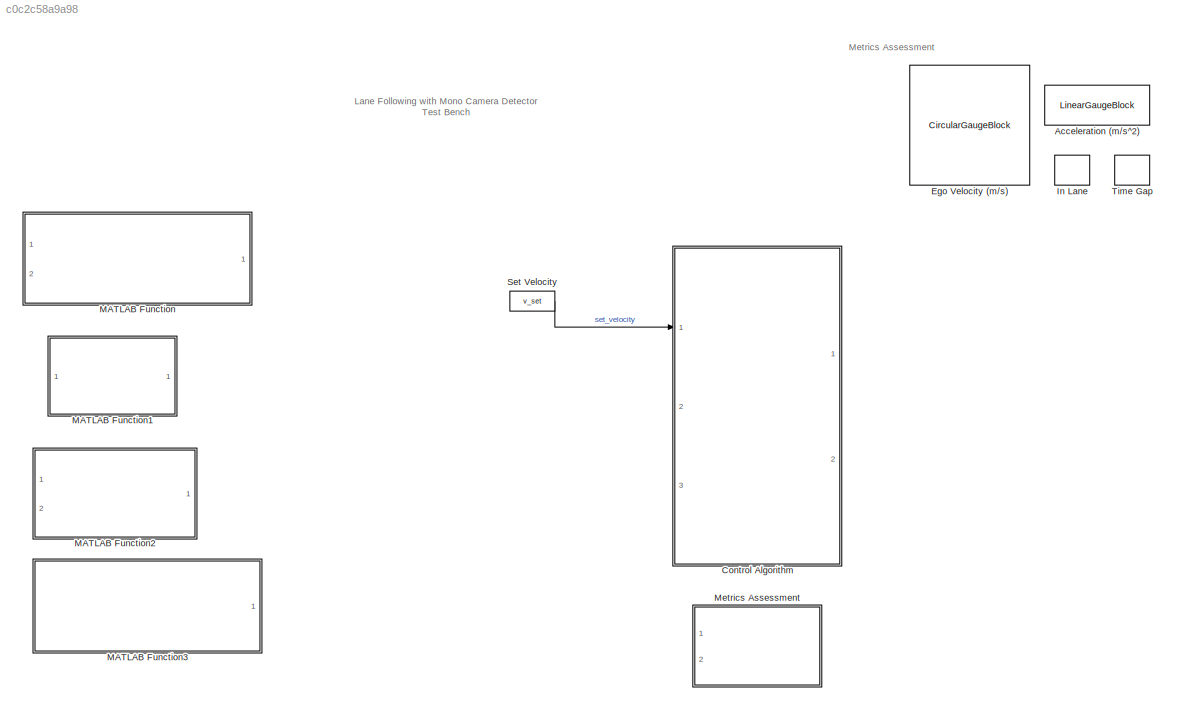
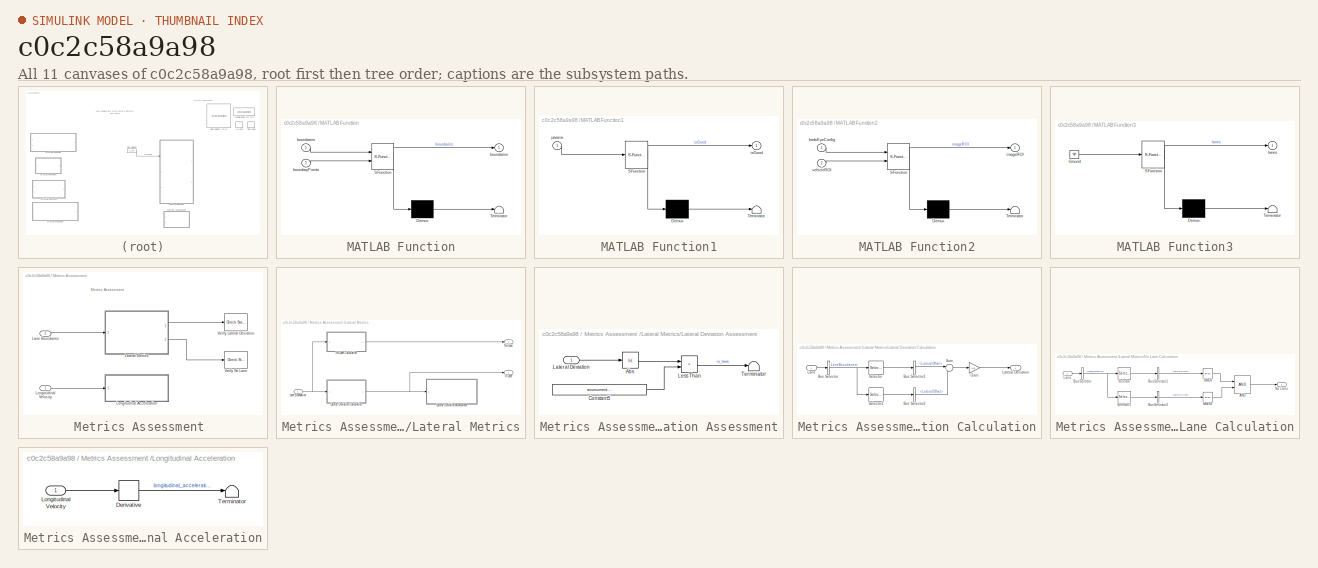
[diagram: thumbnail index - all 11 canvases of the model, root first then tree order]
MODEL slx_c0c2c58a9a98
KIND model
CONFIG AbsTol = auto
CONFIG EnableMultiTasking = off
CONFIG FixedStep = auto
CONFIG MaxStep = auto
CONFIG MinStep = auto
CONFIG PostLoadFcn = laneFollowingWithMonoCameraSetup
CONFIG RelTol = 1e-3
CONFIG SampleTimeConstraint = Unconstrained
CONFIG Solver = VariableStepAuto
CONFIG SolverName = VariableStepAuto
CONFIG StartTime = 0.0
CONFIG StopTime = scenario.StopTime
BLOCK [LinearGaugeBlock] Acceleration (m//s^2)
  LabelPosition = Hide
  ScaleMax = 6
  ScaleMin = -6
BLOCK [ModelReference] Control Algorithm
  CodeInterface = Top model
  ModelNameDialog = LFMonoCameraRefMdl.slx
  ModelReferenceVersion = 1.758
  Ports = [3, 2]
BLOCK [CircularGaugeBlock] Ego Velocity (m//s)
  LabelPosition = Hide
  ScaleMax = 50
BLOCK [LampBlock] In Lane
  LabelPosition = Hide
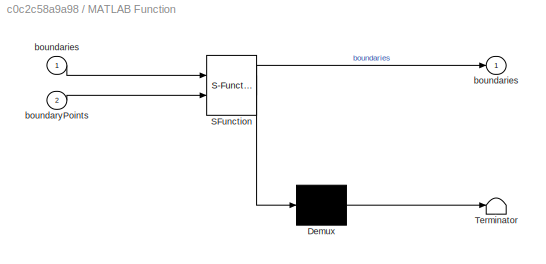
BLOCK [SubSystem] MATLAB Function
  ErrorFcn = Stateflow.Translate.translate
  PermitHierarchicalResolution = ExplicitOnly
  Ports = [2, 1]
  RequestExecContextInheritance = off
  SFBlockType = MATLAB Function
  TreatAsAtomicUnit = on
BLOCK [Demux] MATLAB Function/ Demux 
  Outputs = 1
  Ports = [1, 1]
BLOCK [S-Function] MATLAB Function/ SFunction 
  EnableBusSupport = off
  FunctionName = sf_sfun
  PortCounts = [2 2]
  Ports = [2, 2]
  SFcnIsStateOwnerBlock = off
  SFunctionDeploymentMode = off
  Tag = Stateflow S-Function 2
BLOCK [Terminator] MATLAB Function/ Terminator 
BLOCK [Outport] MATLAB Function/boundaries
  IconDisplay = Port number
BLOCK [Inport] MATLAB Function/boundaries 
  IconDisplay = Port number
BLOCK [Inport] MATLAB Function/boundaryPoints
  IconDisplay = Port number
  Port = 2
BLOCK [SubSystem] MATLAB Function1
  ErrorFcn = Stateflow.Translate.translate
  PermitHierarchicalResolution = ExplicitOnly
  Ports = [1, 1]
  RequestExecContextInheritance = off
  SFBlockType = MATLAB Function
  TreatAsAtomicUnit = on
BLOCK [Demux] MATLAB Function1/ Demux 
  Outputs = 1
  Ports = [1, 1]
BLOCK [S-Function] MATLAB Function1/ SFunction 
  EnableBusSupport = off
  FunctionName = sf_sfun
  PortCounts = [1 2]
  Ports = [1, 2]
  SFcnIsStateOwnerBlock = off
  SFunctionDeploymentMode = off
  Tag = Stateflow S-Function 1
BLOCK [Terminator] MATLAB Function1/ Terminator 
BLOCK [Outport] MATLAB Function1/isGood
  IconDisplay = Port number
BLOCK [Inport] MATLAB Function1/params
  IconDisplay = Port number
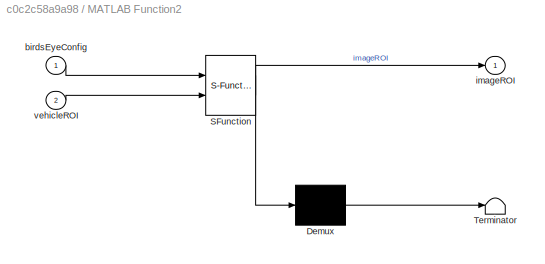
BLOCK [SubSystem] MATLAB Function2
  ErrorFcn = Stateflow.Translate.translate
  PermitHierarchicalResolution = ExplicitOnly
  Ports = [2, 1]
  RequestExecContextInheritance = off
  SFBlockType = MATLAB Function
  TreatAsAtomicUnit = on
BLOCK [Demux] MATLAB Function2/ Demux 
  Outputs = 1
  Ports = [1, 1]
BLOCK [S-Function] MATLAB Function2/ SFunction 
  EnableBusSupport = off
  FunctionName = sf_sfun
  PortCounts = [2 2]
  Ports = [2, 2]
  SFcnIsStateOwnerBlock = off
  SFunctionDeploymentMode = off
  Tag = Stateflow S-Function 3
BLOCK [Terminator] MATLAB Function2/ Terminator 
BLOCK [Inport] MATLAB Function2/birdsEyeConfig
  IconDisplay = Port number
BLOCK [Outport] MATLAB Function2/imageROI
  IconDisplay = Port number
BLOCK [Inport] MATLAB Function2/vehicleROI
  IconDisplay = Port number
  Port = 2
BLOCK [SubSystem] MATLAB Function3
  ErrorFcn = Stateflow.Translate.translate
  PermitHierarchicalResolution = ExplicitOnly
  Ports = [0, 1]
  RequestExecContextInheritance = off
  SFBlockType = MATLAB Function
  TreatAsAtomicUnit = on
BLOCK [Demux] MATLAB Function3/ Demux 
  Outputs = 1
  Ports = [1, 1]
BLOCK [Ground] MATLAB Function3/ Ground 
BLOCK [S-Function] MATLAB Function3/ SFunction 
  EnableBusSupport = off
  FunctionName = sf_sfun
  PortCounts = [1 2]
  Ports = [1, 2]
  SFcnIsStateOwnerBlock = off
  SFunctionDeploymentMode = off
  Tag = Stateflow S-Function 4
BLOCK [Terminator] MATLAB Function3/ Terminator 
BLOCK [Outport] MATLAB Function3/lanes
  IconDisplay = Port number
BLOCK [SubSystem] Metrics Assessment 
  Ports = [2]
  RequestExecContextInheritance = off
BLOCK [Inport] Metrics Assessment /Lane Boundaries
  IconDisplay = Port number
  Port = 2
BLOCK [SubSystem] Metrics Assessment /Lateral Metrics
  Ports = [1, 2]
  RequestExecContextInheritance = off
BLOCK [Outport] Metrics Assessment /Lateral Metrics/In Lane
  IconDisplay = Port number
  VectorParamsAs1DForOutWhenUnconnected = off
BLOCK [Inport] Metrics Assessment /Lateral Metrics/Lane Boundaries
  IconDisplay = Port number
BLOCK [SubSystem] Metrics Assessment /Lateral Metrics/Lateral Deviation Assessment
  Ports = [1]
  RequestExecContextInheritance = off
BLOCK [Abs] Metrics Assessment /Lateral Metrics/Lateral Deviation Assessment/Abs
  SaturateOnIntegerOverflow = off
BLOCK [Constant] Metrics Assessment /Lateral Metrics/Lateral Deviation Assessment/Constant5
  Value = assessment.LateralDeviationMax
BLOCK [Inport] Metrics Assessment /Lateral Metrics/Lateral Deviation Assessment/Lateral Deviation
  IconDisplay = Port number
BLOCK [RelationalOperator] Metrics Assessment /Lateral Metrics/Lateral Deviation Assessment/Less Than
  InputSameDT = off
  Operator = <
  OutDataTypeStr = boolean
  Ports = [2, 1]
  RndMeth = Simplest
BLOCK [Terminator] Metrics Assessment /Lateral Metrics/Lateral Deviation Assessment/Terminator
BLOCK [SubSystem] Metrics Assessment /Lateral Metrics/Lateral Deviation Calculation
  Ports = [1, 1]
  RequestExecContextInheritance = off
BLOCK [BusSelector] Metrics Assessment /Lateral Metrics/Lateral Deviation Calculation/Bus Selector
  OutputAsBus = off
  OutputSignals = LaneBoundaries
  Ports = [1, 1]
BLOCK [BusSelector] Metrics Assessment /Lateral Metrics/Lateral Deviation Calculation/Bus Selector1
  OutputAsBus = off
  OutputSignals = LateralOffset
  Ports = [1, 1]
BLOCK [BusSelector] Metrics Assessment /Lateral Metrics/Lateral Deviation Calculation/Bus Selector2
  OutputAsBus = off
  OutputSignals = LateralOffset
  Ports = [1, 1]
BLOCK [Gain] Metrics Assessment /Lateral Metrics/Lateral Deviation Calculation/Gain
  Gain = -0.5
  OutDataTypeStr = Inherit: Inherit via internal rule
  ParamDataTypeStr = Inherit: Inherit via internal rule
  SaturateOnIntegerOverflow = off
BLOCK [Inport] Metrics Assessment /Lateral Metrics/Lateral Deviation Calculation/Lane
  IconDisplay = Port number
BLOCK [Outport] Metrics Assessment /Lateral Metrics/Lateral Deviation Calculation/Lateral Deviation
  IconDisplay = Port number
BLOCK [Selector] Metrics Assessment /Lateral Metrics/Lateral Deviation Calculation/Selector
  IndexOptions = Index vector (dialog)
  Indices = 1
  InputPortWidth = 2
  OutputSizes = 1
  Ports = [1, 1]
BLOCK [Selector] Metrics Assessment /Lateral Metrics/Lateral Deviation Calculation/Selector1
  IndexOptions = Index vector (dialog)
  Indices = 2
  InputPortWidth = 2
  OutputSizes = 1
  Ports = [1, 1]
BLOCK [Sum] Metrics Assessment /Lateral Metrics/Lateral Deviation Calculation/Sum
  IconShape = round
  InputSameDT = off
  Inputs = |++
  OutDataTypeStr = Inherit: Inherit via internal rule
  Ports = [2, 1]
  SaturateOnIntegerOverflow = off
BLOCK [Outport] Metrics Assessment /Lateral Metrics/No Lane
  IconDisplay = Port number
  Port = 2
BLOCK [SubSystem] Metrics Assessment /Lateral Metrics/No Lane Calculation
  Ports = [1, 1]
  RequestExecContextInheritance = off
BLOCK [Logic] Metrics Assessment /Lateral Metrics/No Lane Calculation/AND
  AllPortsSameDT = off
  IconShape = distinctive
  OutDataTypeStr = boolean
  Ports = [2, 1]
BLOCK [BusSelector] Metrics Assessment /Lateral Metrics/No Lane Calculation/Bus Selector
  OutputAsBus = off
  OutputSignals = LaneBoundaries
  Ports = [1, 1]
BLOCK [BusSelector] Metrics Assessment /Lateral Metrics/No Lane Calculation/Bus Selector1
  OutputAsBus = off
  OutputSignals = LateralOffset
  Ports = [1, 1]
BLOCK [BusSelector] Metrics Assessment /Lateral Metrics/No Lane Calculation/Bus Selector2
  OutputAsBus = off
  OutputSignals = LateralOffset
  Ports = [1, 1]
BLOCK [RelationalOperator] Metrics Assessment /Lateral Metrics/No Lane Calculation/IsNaN
  InputSameDT = off
  Operator = isNaN
  OutDataTypeStr = boolean
  Ports = [1, 1]
  RndMeth = Simplest
BLOCK [RelationalOperator] Metrics Assessment /Lateral Metrics/No Lane Calculation/IsNaN1
  InputSameDT = off
  Operator = isNaN
  OutDataTypeStr = boolean
  Ports = [1, 1]
  RndMeth = Simplest
BLOCK [Inport] Metrics Assessment /Lateral Metrics/No Lane Calculation/Lane
  IconDisplay = Port number
BLOCK [Outport] Metrics Assessment /Lateral Metrics/No Lane Calculation/No Lane
  IconDisplay = Port number
BLOCK [Selector] Metrics Assessment /Lateral Metrics/No Lane Calculation/Selector
  IndexOptions = Index vector (dialog)
  Indices = 1
  InputPortWidth = 2
  OutputSizes = 1
  Ports = [1, 1]
BLOCK [Selector] Metrics Assessment /Lateral Metrics/No Lane Calculation/Selector1
  IndexOptions = Index vector (dialog)
  Indices = 2
  InputPortWidth = 2
  OutputSizes = 1
  Ports = [1, 1]
BLOCK [SubSystem] Metrics Assessment /Longitudinal Acceleration
  Ports = [1]
  RequestExecContextInheritance = off
BLOCK [Derivative] Metrics Assessment /Longitudinal Acceleration/Derivative
BLOCK [Inport] Metrics Assessment /Longitudinal Acceleration/Longitudinal Velocity
  IconDisplay = Port number
BLOCK [Terminator] Metrics Assessment /Longitudinal Acceleration/Terminator
BLOCK [Inport] Metrics Assessment /Longitudinal Velocity
  IconDisplay = Port number
BLOCK [Reference] Metrics Assessment /Verify Lateral Deviation  REF=simulink/Model
Verification/Check Static 
Upper Bound
  AttributesFormatString = ---------------------------------------\nmax = %<max>
  Description = u <= assessment.LateralDeviationMax
  Ports = [1]
  SourceBlock = simulink/Model\nVerification/Check Static \nUpper Bound
  SourceProductBaseCode = SL
  SourceProductName = Simulink
  SourceType = Checks_SMax
BLOCK [Reference] Metrics Assessment /Verify No Lane  REF=simulink/Model
Verification/Check 
Static Range
  Description = 0 <= u <= 0
  Ports = [1]
  SourceBlock = simulink/Model\nVerification/Check \nStatic Range
  SourceProductBaseCode = SL
  SourceProductName = Simulink
  SourceType = Checks_SRange
BLOCK [Constant] Set Velocity
  SampleTime = Ts
  Value = v_set
BLOCK [LampBlock] Time Gap
  LabelPosition = Hide
ANNOTATION (root): Lane Following with Mono Camera Detector Test Bench
ANNOTATION (root): Metrics Assessment
ANNOTATION Metrics Assessment : Metrics Assessment
LINE Metrics Assessment /Lane Boundaries:1 -> Metrics Assessment /Lateral Metrics:1
NET Metrics Assessment /Lateral Metrics/Lane Boundaries:1 -> Metrics Assessment /Lateral Metrics/Lateral Deviation Calculation:1, Metrics Assessment /Lateral Metrics/No Lane Calculation:1
LINE Metrics Assessment /Lateral Metrics/Lateral Deviation Assessment/Abs:1 -> Metrics Assessment /Lateral Metrics/Lateral Deviation Assessment/Less Than:1
LINE Metrics Assessment /Lateral Metrics/Lateral Deviation Assessment/Constant5:1 -> Metrics Assessment /Lateral Metrics/Lateral Deviation Assessment/Less Than:2
LINE Metrics Assessment /Lateral Metrics/Lateral Deviation Assessment/Lateral Deviation:1 -> Metrics Assessment /Lateral Metrics/Lateral Deviation Assessment/Abs:1
LINE Metrics Assessment /Lateral Metrics/Lateral Deviation Assessment/Less Than:1 -> Metrics Assessment /Lateral Metrics/Lateral Deviation Assessment/Terminator:1
LINE Metrics Assessment /Lateral Metrics/Lateral Deviation Calculation/Bus Selector1:1 -> Metrics Assessment /Lateral Metrics/Lateral Deviation Calculation/Sum:1
LINE Metrics Assessment /Lateral Metrics/Lateral Deviation Calculation/Bus Selector2:1 -> Metrics Assessment /Lateral Metrics/Lateral Deviation Calculation/Sum:2
NET Metrics Assessment /Lateral Metrics/Lateral Deviation Calculation/Bus Selector:1 -> Metrics Assessment /Lateral Metrics/Lateral Deviation Calculation/Selector1:1, Metrics Assessment /Lateral Metrics/Lateral Deviation Calculation/Selector:1
LINE Metrics Assessment /Lateral Metrics/Lateral Deviation Calculation/Gain:1 -> Metrics Assessment /Lateral Metrics/Lateral Deviation Calculation/Lateral Deviation:1
LINE Metrics Assessment /Lateral Metrics/Lateral Deviation Calculation/Lane:1 -> Metrics Assessment /Lateral Metrics/Lateral Deviation Calculation/Bus Selector:1
LINE Metrics Assessment /Lateral Metrics/Lateral Deviation Calculation/Selector1:1 -> Metrics Assessment /Lateral Metrics/Lateral Deviation Calculation/Bus Selector2:1
LINE Metrics Assessment /Lateral Metrics/Lateral Deviation Calculation/Selector:1 -> Metrics Assessment /Lateral Metrics/Lateral Deviation Calculation/Bus Selector1:1
LINE Metrics Assessment /Lateral Metrics/Lateral Deviation Calculation/Sum:1 -> Metrics Assessment /Lateral Metrics/Lateral Deviation Calculation/Gain:1
NET Metrics Assessment /Lateral Metrics/Lateral Deviation Calculation:1 -> Metrics Assessment /Lateral Metrics/In Lane:1, Metrics Assessment /Lateral Metrics/Lateral Deviation Assessment:1
LINE Metrics Assessment /Lateral Metrics/No Lane Calculation/AND:1 -> Metrics Assessment /Lateral Metrics/No Lane Calculation/No Lane:1
LINE Metrics Assessment /Lateral Metrics/No Lane Calculation/Bus Selector1:1 -> Metrics Assessment /Lateral Metrics/No Lane Calculation/IsNaN:1
LINE Metrics Assessment /Lateral Metrics/No Lane Calculation/Bus Selector2:1 -> Metrics Assessment /Lateral Metrics/No Lane Calculation/IsNaN1:1
NET Metrics Assessment /Lateral Metrics/No Lane Calculation/Bus Selector:1 -> Metrics Assessment /Lateral Metrics/No Lane Calculation/Selector1:1, Metrics Assessment /Lateral Metrics/No Lane Calculation/Selector:1
LINE Metrics Assessment /Lateral Metrics/No Lane Calculation/IsNaN1:1 -> Metrics Assessment /Lateral Metrics/No Lane Calculation/AND:2
LINE Metrics Assessment /Lateral Metrics/No Lane Calculation/IsNaN:1 -> Metrics Assessment /Lateral Metrics/No Lane Calculation/AND:1
LINE Metrics Assessment /Lateral Metrics/No Lane Calculation/Lane:1 -> Metrics Assessment /Lateral Metrics/No Lane Calculation/Bus Selector:1
LINE Metrics Assessment /Lateral Metrics/No Lane Calculation/Selector1:1 -> Metrics Assessment /Lateral Metrics/No Lane Calculation/Bus Selector2:1
LINE Metrics Assessment /Lateral Metrics/No Lane Calculation/Selector:1 -> Metrics Assessment /Lateral Metrics/No Lane Calculation/Bus Selector1:1
LINE Metrics Assessment /Lateral Metrics/No Lane Calculation:1 -> Metrics Assessment /Lateral Metrics/No Lane:1
LINE Metrics Assessment /Lateral Metrics:1 -> Metrics Assessment /Verify Lateral Deviation:1
LINE Metrics Assessment /Lateral Metrics:2 -> Metrics Assessment /Verify No Lane:1
LINE Metrics Assessment /Longitudinal Acceleration/Derivative:1 -> Metrics Assessment /Longitudinal Acceleration/Terminator:1
LINE Metrics Assessment /Longitudinal Acceleration/Longitudinal Velocity:1 -> Metrics Assessment /Longitudinal Acceleration/Derivative:1
LINE Metrics Assessment /Longitudinal Velocity:1 -> Metrics Assessment /Longitudinal Acceleration:1
LINE Set Velocity:1 -> Control Algorithm:1
note: NET lines group one-source signal fan-out (src -> all destinations, sorted); 1:1 wires keep LINE
CHART MATLAB Function1 states=1 transitions=1
  STATE_LABEL 'eML_blk_kernel()'
  STATE_LABEL "SCRIPT:\nfunction isGood = validateBoundaryFcn(params)\n\nif ~isempty(params)\n    a = params(1);\n    \n    % Reject any curve with a small 'a' coefficient, which makes it highly\n    % curved.\n    isGood = abs(a) < 0.003; % a from ax^2+bx+c\nelse\n    isGood = false;\nend\nend"
CHART MATLAB Function states=1 transitions=1
  STATE_LABEL 'eML_blk_kernel()'
  STATE_LABEL 'SCRIPT:\nfunction boundaries = classifyLaneTypes(boundaries, boundaryPoints)\n\nfor bInd = 1 : numel(boundaries)\n    vehiclePoints = boundaryPoints{bInd};\n    % Sort by x\n    vehiclePoints = sortrows(vehiclePoints, 1);\n    \n    xVehicle = vehiclePoints(:,1);\n    xVehicleUnique = unique(xVehicle);\n    \n    % Dashed vs solid\n    xdiff  = diff(xVehicleUnique);\n    % Sufficiently large threshold to remov...<+517ch>'
CHART MATLAB Function2 states=1 transitions=1
  STATE_LABEL 'eML_blk_kernel()'
  STATE_LABEL 'SCRIPT:\nfunction imageROI = vehicleToImageROI(birdsEyeConfig, vehicleROI)\n\nvehicleROI = double(vehicleROI);\n\nloc2 = abs(vehicleToImage(birdsEyeConfig, [vehicleROI(2) vehicleROI(4)]));\nloc1 = abs(vehicleToImage(birdsEyeConfig, [vehicleROI(1) vehicleROI(4)]));\nloc4 =     vehicleToImage(birdsEyeConfig, [vehicleROI(1) vehicleROI(4)]);\nloc3 =     vehicleToImage(birdsEyeConfig, [vehicleROI(1) vehicleROI...<+150ch>'
CHART MATLAB Function3 states=1 transitions=1
  STATE_LABEL 'eML_blk_kernel()'
  STATE_LABEL 'SCRIPT:\nfunction lanes = detect_lanes()\n%% initialize camara intrinsics\n% focalLength = cameraParams.FocalLength;\n% principalPoint = cameraParams.PrincipalPoint;\n% imageSize = cameraParams.ImageSize;\nfocalLength = [637.8722,637.0641];\nprincipalPoint = [323.5977,239.8220];\nimageSize      = [480, 640];  \ncamIntrinsics = cameraIntrinsics(focalLength, principalPoint, imageSize);\n\n%% determine camera s...<+3608ch>'
